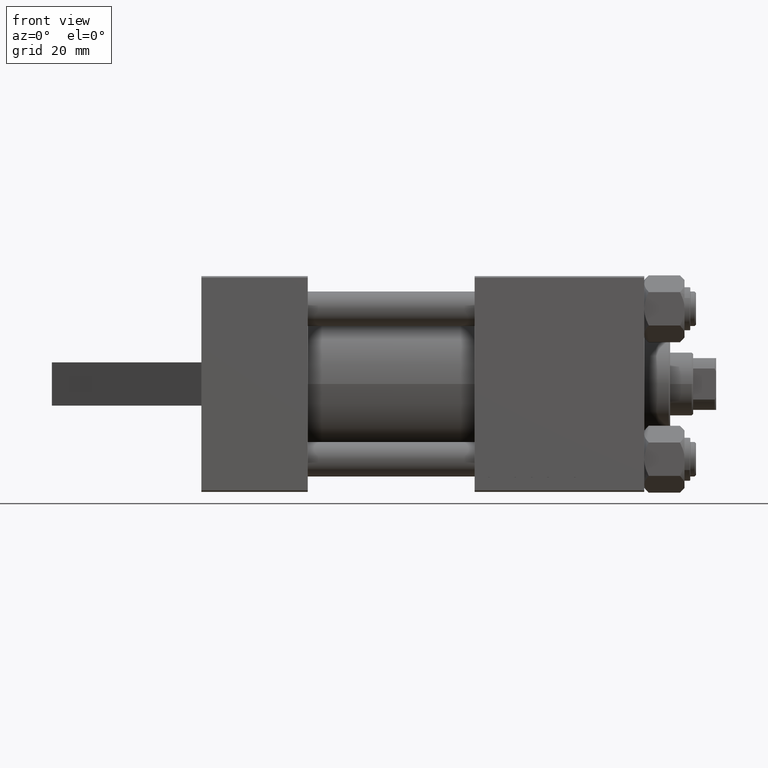
[diagram: clean part render]
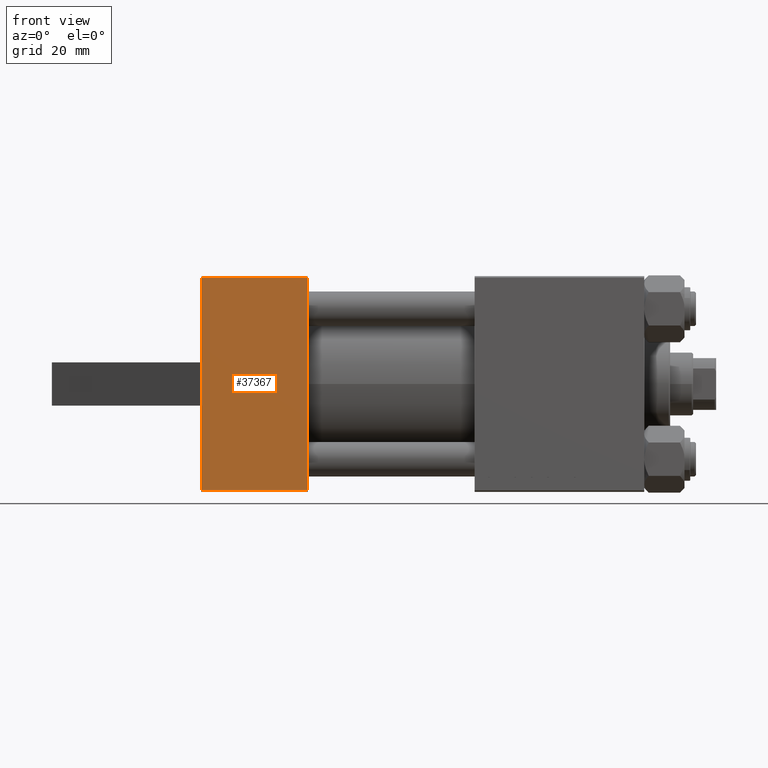
[diagram: same view with one face highlighted and labeled with its STEP entity id]
A machine part, front view. The second image highlights one B-rep face of the part: STEP entity #37367.
In plain terms, the highlighted planar face has unit normal (-0, 1, 0).
Its self-contained STEP definition (entity closure, byte-faithful):
#2793 = CARTESIAN_POINT ( 'NONE',  ( 37.00000000000000000, -37.00000000000000711, 37.49999999999999289 ) ) ;
#2857 = ORIENTED_EDGE ( 'NONE', *, *, #8503, .T. ) ;
#3339 = CARTESIAN_POINT ( 'NONE',  ( 37.00000000000000000, 37.49999999999999289, 37.50000000000000000 ) ) ;
#3560 = VECTOR ( 'NONE', #38421, 1000.000000000000000 ) ;
#5096 = CARTESIAN_POINT ( 'NONE',  ( 0.000000000000000000, 36.99999999999999289, 37.50000000000000000 ) ) ;
#5363 = ORIENTED_EDGE ( 'NONE', *, *, #26062, .T. ) ;
#5379 = CARTESIAN_POINT ( 'NONE',  ( 0.000000000000000000, -7.500000000000000000, 37.49999999999999289 ) ) ;
#5774 = VERTEX_POINT ( 'NONE', #25083 ) ;
#6405 = DIRECTION ( 'NONE',  ( -1.000000000000000000, 0.000000000000000000, 0.000000000000000000 ) ) ;
#7240 = VECTOR ( 'NONE', #6405, 1000.000000000000000 ) ;
#8503 = EDGE_CURVE ( 'NONE', #42562, #20327, #34480, .T. ) ;
#8868 = ORIENTED_EDGE ( 'NONE', *, *, #35773, .F. ) ;
#9793 = VECTOR ( 'NONE', #28199, 1000.000000000000000 ) ;
#10044 = LINE ( 'NONE', #24027, #9793 ) ;
#10438 = EDGE_CURVE ( 'NONE', #5774, #17576, #24529, .T. ) ;
#10591 = CARTESIAN_POINT ( 'NONE',  ( 0.000000000000000000, 36.99999999999999289, 37.50000000000000000 ) ) ;
#13843 = DIRECTION ( 'NONE',  ( 1.000000000000000000, 0.000000000000000000, 0.000000000000000000 ) ) ;
#13949 = LINE ( 'NONE', #42363, #42568 ) ;
#15831 = CARTESIAN_POINT ( 'NONE',  ( 0.000000000000000000, 7.500000000000000000, 37.49999999999999289 ) ) ;
#17576 = VERTEX_POINT ( 'NONE', #2793 ) ;
#17681 = DIRECTION ( 'NONE',  ( 0.000000000000000000, 1.000000000000000000, 9.251858538542971581E-17 ) ) ;
#20327 = VERTEX_POINT ( 'NONE', #15831 ) ;
#21162 = DIRECTION ( 'NONE',  ( 0.000000000000000000, -1.000000000000000000, -9.251858538542971581E-17 ) ) ;
#21314 = ORIENTED_EDGE ( 'NONE', *, *, #43852, .T. ) ;
#23710 = VECTOR ( 'NONE', #43152, 1000.000000000000000 ) ;
#24027 = CARTESIAN_POINT ( 'NONE',  ( 0.000000000000000000, -7.500000000000000000, 37.49999999999999289 ) ) ;
#24100 = LINE ( 'NONE', #45975, #40751 ) ;
#24435 = PLANE ( 'NONE',  #35747 ) ;
#24529 = LINE ( 'NONE', #3339, #23710 ) ;
#24663 = CARTESIAN_POINT ( 'NONE',  ( 0.000000000000000000, -37.00000000000000711, 37.49999999999999289 ) ) ;
#25083 = CARTESIAN_POINT ( 'NONE',  ( 37.00000000000000000, 36.99999999999999289, 37.50000000000000000 ) ) ;
#26062 = EDGE_CURVE ( 'NONE', #5774, #42562, #41808, .T. ) ;
#26554 = ORIENTED_EDGE ( 'NONE', *, *, #41052, .T. ) ;
#28199 = DIRECTION ( 'NONE',  ( 0.000000000000000000, 1.000000000000000000, 0.000000000000000000 ) ) ;
#34480 = LINE ( 'NONE', #45191, #3560 ) ;
#35362 = DIRECTION ( 'NONE',  ( 0.000000000000000000, 9.251858538542971581E-17, -1.000000000000000000 ) ) ;
#35575 = EDGE_LOOP ( 'NONE', ( #2857, #8868, #26554, #21314, #37639, #5363 ) ) ;
#35598 = FACE_OUTER_BOUND ( 'NONE', #35575, .T. ) ;
#35747 = AXIS2_PLACEMENT_3D ( 'NONE', #46078, #35362, #17681 ) ;
#35773 = EDGE_CURVE ( 'NONE', #42219, #20327, #10044, .T. ) ;
#37367 = ADVANCED_FACE ( 'NONE', ( #35598 ), #24435, .F. ) ;
#37639 = ORIENTED_EDGE ( 'NONE', *, *, #10438, .F. ) ;
#38421 = DIRECTION ( 'NONE',  ( 0.000000000000000000, -1.000000000000000000, -9.251858538542971581E-17 ) ) ;
#40751 = VECTOR ( 'NONE', #13843, 1000.000000000000000 ) ;
#41052 = EDGE_CURVE ( 'NONE', #42219, #42486, #13949, .T. ) ;
#41808 = LINE ( 'NONE', #10591, #7240 ) ;
#42219 = VERTEX_POINT ( 'NONE', #5379 ) ;
#42363 = CARTESIAN_POINT ( 'NONE',  ( 0.000000000000000000, 37.49999999999999289, 37.50000000000000000 ) ) ;
#42486 = VERTEX_POINT ( 'NONE', #24663 ) ;
#42562 = VERTEX_POINT ( 'NONE', #5096 ) ;
#42568 = VECTOR ( 'NONE', #21162, 1000.000000000000000 ) ;
#43152 = DIRECTION ( 'NONE',  ( 0.000000000000000000, -1.000000000000000000, -9.251858538542971581E-17 ) ) ;
#43852 = EDGE_CURVE ( 'NONE', #42486, #17576, #24100, .T. ) ;
#45191 = CARTESIAN_POINT ( 'NONE',  ( 0.000000000000000000, 37.49999999999999289, 37.50000000000000000 ) ) ;
#45975 = CARTESIAN_POINT ( 'NONE',  ( 37.00000000000000000, -37.00000000000000711, 37.49999999999999289 ) ) ;
#46078 = CARTESIAN_POINT ( 'NONE',  ( 37.00000000000000000, 37.49999999999999289, 37.50000000000000000 ) ) ;